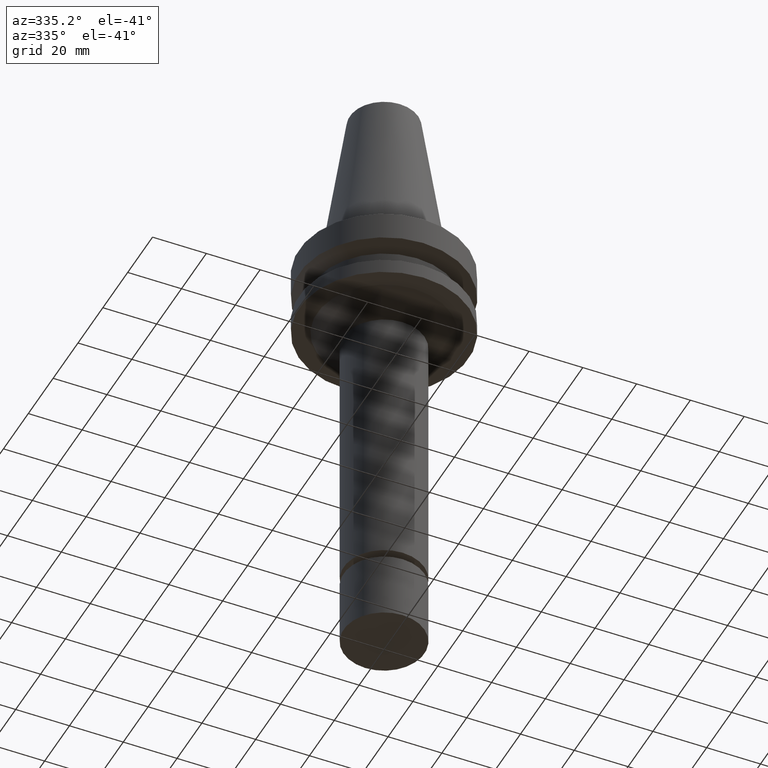
[diagram: clean part render]
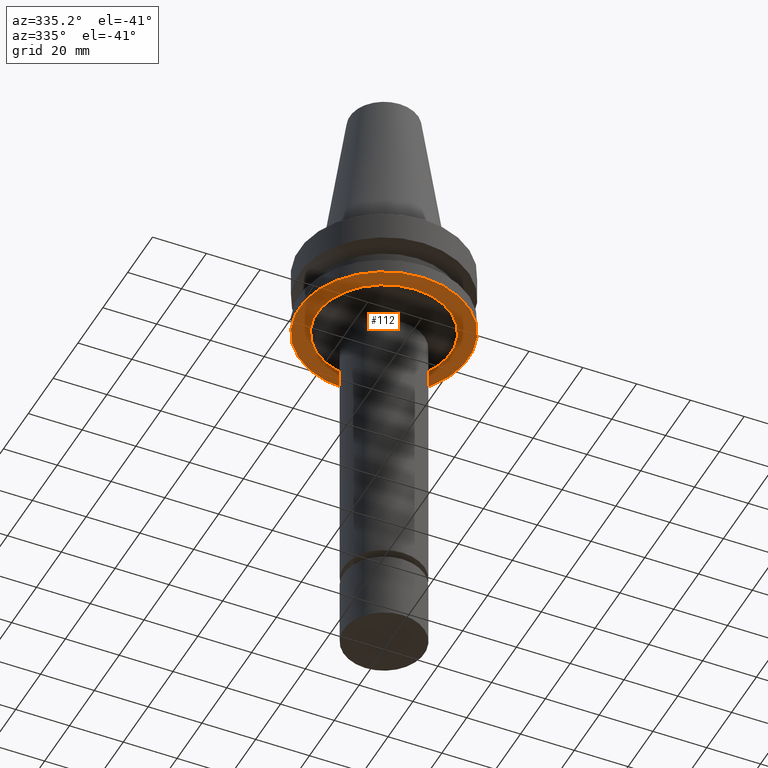
[diagram: same view with one face highlighted and labeled with its STEP entity id]
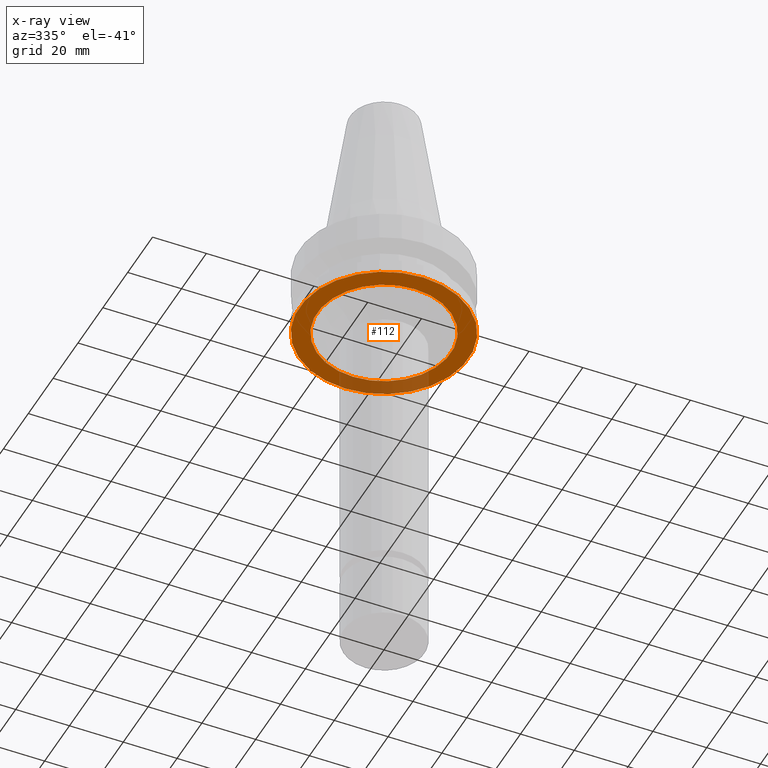
[diagram: x-ray of the same camera — body ghosted, the highlighted face saturated]
A machine part, auxiliary view. The second image highlights one B-rep face of the part: STEP entity #112.
The next image is the same camera in x-ray: the body ghosted, the highlighted face saturated — about 18% of this face is hidden behind the body in this view.
In plain terms, the highlighted planar face has unit normal (0, 0, -1).
Its self-contained STEP definition (entity closure, byte-faithful):
#112=ADVANCED_FACE('Unnamed[1]',(#255,#256),#257,.T.);
#140=EDGE_CURVE('Unnamed[1]',#299,#299,#300,.T.);
#154=EDGE_CURVE('Unnamed[1]',#320,#320,#321,.T.);
#255=FACE_BOUND('',#443,.T.);
#256=FACE_OUTER_BOUND('',#444,.T.);
#257=PLANE('',#445);
#299=VERTEX_POINT('',#498);
#300=CIRCLE('',#499,31.5000000000003);
#320=VERTEX_POINT('',#525);
#321=CIRCLE('',#526,24.8688249295048);
#443=EDGE_LOOP('',(#636));
#444=EDGE_LOOP('',(#637));
#445=AXIS2_PLACEMENT_3D('',#638,#639,#640);
#498=CARTESIAN_POINT('',(1.65327317884891E-015,31.5000000000004,-26.9999999999998));
#499=AXIS2_PLACEMENT_3D('',#687,#688,#689);
#525=CARTESIAN_POINT('',(1.65327317884891E-015,24.8688249295049,-26.9999999999998));
#526=AXIS2_PLACEMENT_3D('',#710,#711,#712);
#636=ORIENTED_EDGE('',*,*,#154,.F.);
#637=ORIENTED_EDGE('',*,*,#140,.T.);
#638=CARTESIAN_POINT('',(1.65327317884891E-015,28.1844124647526,-26.9999999999998));
#639=DIRECTION('',(6.12323399573677E-017,3.33702044811439E-015,-1.0));
#640=DIRECTION('',(-2.09160723254396E-031,1.0,3.33702044811439E-015));
#687=CARTESIAN_POINT('',(1.65327317884891E-015,7.10250730749678E-014,-26.9999999999998));
#688=DIRECTION('',(6.12323399573677E-017,-6.57737920631997E-017,-1.0));
#689=DIRECTION('',(-7.99669534893984E-034,1.0,-6.57737920631997E-017));
#710=CARTESIAN_POINT('',(1.65327317884891E-015,7.10250730749678E-014,-26.9999999999998));
#711=DIRECTION('',(6.12323399573677E-017,-6.57737920632305E-017,-1.0));
#712=DIRECTION('',(-7.996695348925E-034,1.0,-6.57737920632305E-017));